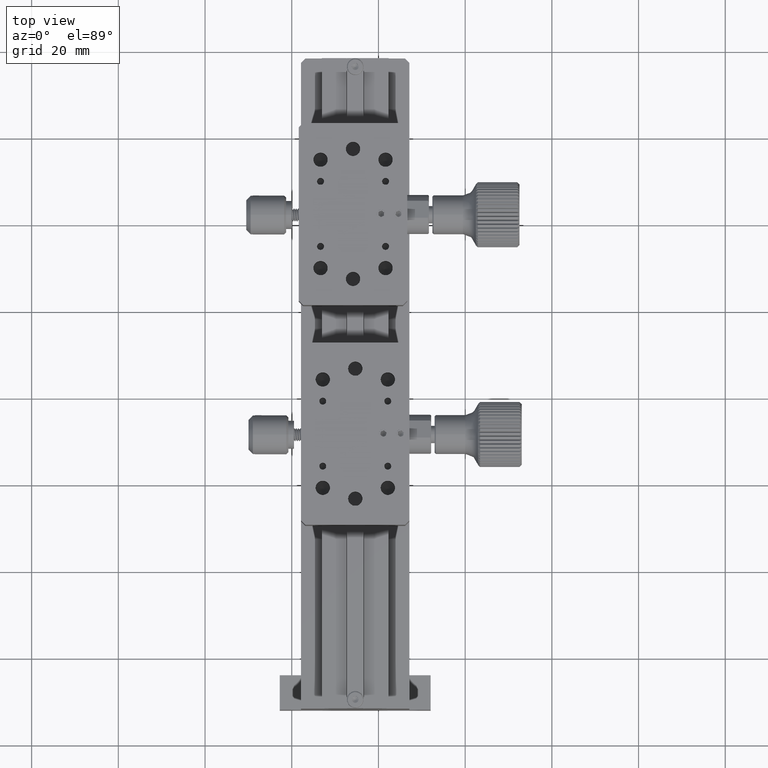
[diagram: clean part render]
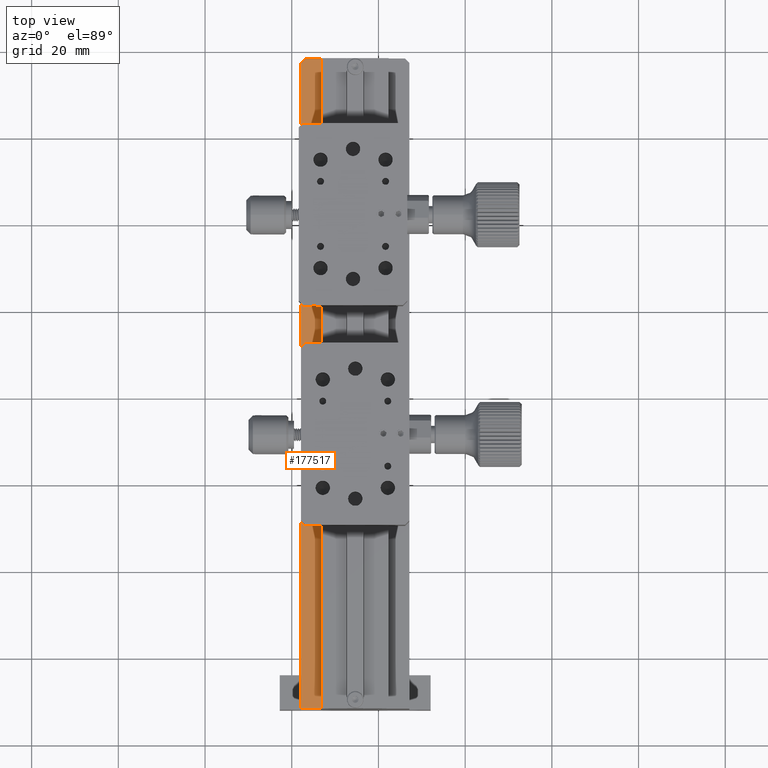
[diagram: same view with one face highlighted and labeled with its STEP entity id]
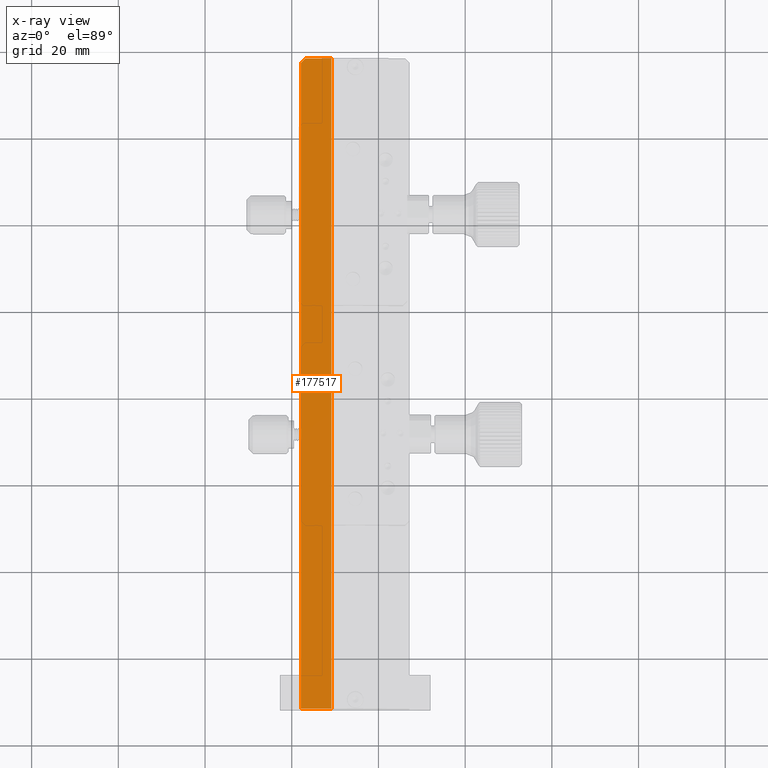
[diagram: x-ray of the same camera — body ghosted, the highlighted face saturated]
A machine part, top view. The second image highlights one B-rep face of the part: STEP entity #177517.
The next image is the same camera in x-ray: the body ghosted, the highlighted face saturated — about 0% of this face is hidden behind the body in this view.
In plain terms, the highlighted planar face has unit normal (0, 0, -1).
Its self-contained STEP definition (entity closure, byte-faithful):
#1971 = EDGE_CURVE ( 'NONE', #142999, #132604, #107773, .T. ) ;
#3579 = EDGE_LOOP ( 'NONE', ( #79116, #174954, #192958, #123830, #113504, #136852, #177139 ) ) ;
#5432 = VERTEX_POINT ( 'NONE', #40624 ) ;
#9301 = VERTEX_POINT ( 'NONE', #214081 ) ;
#11812 =( BOUNDED_CURVE ( )  B_SPLINE_CURVE ( 3, ( #169332, #98085, #165885, #184562 ),
 .UNSPECIFIED., .F., .F. ) 
 B_SPLINE_CURVE_WITH_KNOTS ( ( 4, 4 ),
 ( 3.141592653590070672, 4.712388980384659476 ),
 .UNSPECIFIED. ) 
 CURVE ( )  GEOMETRIC_REPRESENTATION_ITEM ( )  RATIONAL_B_SPLINE_CURVE ( ( 1.000000000000000000, 0.8047378541244374350, 0.8047378541244374350, 1.000000000000000000 ) ) 
 REPRESENTATION_ITEM ( '' )  );
#16333 = CARTESIAN_POINT ( 'NONE',  ( -37.85755063790385577, 78.07759562841538070, 5.545841171384680024 ) ) ;
#20546 = CARTESIAN_POINT ( 'NONE',  ( -36.85755063790384867, 78.07759562841529544, 5.545841171384680024 ) ) ;
#22728 = CARTESIAN_POINT ( 'NONE',  ( -37.85755063790385577, -71.92240437158470456, 5.545841171383111501 ) ) ;
#24317 = EDGE_CURVE ( 'NONE', #34654, #5432, #127814, .T. ) ;
#32755 = CARTESIAN_POINT ( 'NONE',  ( -30.85755063790403341, 77.99475291594069404, 5.545841171384680912 ) ) ;
#34058 = DIRECTION ( 'NONE',  ( 0.000000000000000000, -1.000000000000000000, -0.000000000000000000 ) ) ;
#34654 = VERTEX_POINT ( 'NONE', #207119 ) ;
#36192 = CARTESIAN_POINT ( 'NONE',  ( -30.85755063790397656, 77.87759562841533523, 5.545841171384652490 ) ) ;
#38434 = PLANE ( 'NONE',  #110906 ) ;
#40624 = CARTESIAN_POINT ( 'NONE',  ( -37.85755063790385577, -71.92240437158470456, 5.545841171383902868 ) ) ;
#51317 = VECTOR ( 'NONE', #123781, 1000.000000000000114 ) ;
#51578 = LINE ( 'NONE', #194035, #102021 ) ;
#52562 = CARTESIAN_POINT ( 'NONE',  ( -37.85755063790385577, 77.07759562841538070, 5.545841171384665813 ) ) ;
#53941 = VERTEX_POINT ( 'NONE', #20546 ) ;
#70033 = FACE_OUTER_BOUND ( 'NONE', #3579, .T. ) ;
#72327 = DIRECTION ( 'NONE',  ( 0.000000000000000000, 1.047444401652940164E-14, -1.000000000000000000 ) ) ;
#74735 = CARTESIAN_POINT ( 'NONE',  ( -30.62661053022810975, 78.07759562841526702, 5.545841171384680024 ) ) ;
#78993 = CARTESIAN_POINT ( 'NONE',  ( -30.85755063790397656, 77.87759562841533523, 5.545841171384652490 ) ) ;
#79116 = ORIENTED_EDGE ( 'NONE', *, *, #98469, .F. ) ;
#82574 = EDGE_CURVE ( 'NONE', #117216, #142999, #87038, .T. ) ;
#87038 =( BOUNDED_CURVE ( )  B_SPLINE_CURVE ( 3, ( #120346, #121485, #32755, #36192 ),
 .UNSPECIFIED., .F., .F. ) 
 B_SPLINE_CURVE_WITH_KNOTS ( ( 4, 4 ),
 ( 4.712388980384389470, 6.283185307179586232 ),
 .UNSPECIFIED. ) 
 CURVE ( )  GEOMETRIC_REPRESENTATION_ITEM ( )  RATIONAL_B_SPLINE_CURVE ( ( 1.000000000000000000, 0.8047378541242942163, 0.8047378541242942163, 1.000000000000000000 ) ) 
 REPRESENTATION_ITEM ( '' )  );
#92785 = DIRECTION ( 'NONE',  ( -1.000000000000000000, 0.000000000000000000, -0.000000000000000000 ) ) ;
#98085 = CARTESIAN_POINT ( 'NONE',  ( -30.85755063790384511, -71.83956165911010316, 5.545841171383110613 ) ) ;
#98469 = EDGE_CURVE ( 'NONE', #9301, #53941, #212551, .T. ) ;
#99371 = CARTESIAN_POINT ( 'NONE',  ( -30.85755063790391617, -71.72240437158475856, 5.545841171383111501 ) ) ;
#102021 = VECTOR ( 'NONE', #34058, 1000.000000000000000 ) ;
#107773 = LINE ( 'NONE', #215206, #209496 ) ;
#110906 = AXIS2_PLACEMENT_3D ( 'NONE', #16333, #72327, #214783 ) ;
#113504 = ORIENTED_EDGE ( 'NONE', *, *, #1971, .F. ) ;
#117216 = VERTEX_POINT ( 'NONE', #74735 ) ;
#120346 = CARTESIAN_POINT ( 'NONE',  ( -30.62661053022810975, 78.07759562841526702, 5.545841171384680024 ) ) ;
#121485 = CARTESIAN_POINT ( 'NONE',  ( -30.76189211320875216, 78.07759562841532386, 5.545841171384681800 ) ) ;
#123781 = DIRECTION ( 'NONE',  ( 0.7071067811865474617, 0.7071067811865474617, 9.813077866773586595E-15 ) ) ;
#123830 = ORIENTED_EDGE ( 'NONE', *, *, #160205, .F. ) ;
#127814 = LINE ( 'NONE', #22728, #222740 ) ;
#128680 = LINE ( 'NONE', #150819, #167139 ) ;
#132604 = VERTEX_POINT ( 'NONE', #99371 ) ;
#136852 = ORIENTED_EDGE ( 'NONE', *, *, #82574, .F. ) ;
#142999 = VERTEX_POINT ( 'NONE', #78993 ) ;
#143973 = DIRECTION ( 'NONE',  ( -0.000000000000000000, -1.000000000000000000, -1.047444401652940164E-14 ) ) ;
#150819 = CARTESIAN_POINT ( 'NONE',  ( -25.35755063790384867, 78.07759562841526702, 5.545841171384680024 ) ) ;
#160205 = EDGE_CURVE ( 'NONE', #132604, #34654, #11812, .T. ) ;
#161218 = EDGE_CURVE ( 'NONE', #117216, #53941, #128680, .T. ) ;
#165885 = CARTESIAN_POINT ( 'NONE',  ( -30.76189211320862071, -71.92240437158469035, 5.545841171383108836 ) ) ;
#166030 = EDGE_CURVE ( 'NONE', #9301, #5432, #51578, .T. ) ;
#167139 = VECTOR ( 'NONE', #222054, 1000.000000000000000 ) ;
#169332 = CARTESIAN_POINT ( 'NONE',  ( -30.85755063790391617, -71.72240437158475856, 5.545841171383111501 ) ) ;
#174954 = ORIENTED_EDGE ( 'NONE', *, *, #166030, .T. ) ;
#177139 = ORIENTED_EDGE ( 'NONE', *, *, #161218, .T. ) ;
#177517 = ADVANCED_FACE ( 'NONE', ( #70033 ), #38434, .F. ) ;
#184562 = CARTESIAN_POINT ( 'NONE',  ( -30.62661053022804580, -71.92240437158470456, 5.545841171383111501 ) ) ;
#192958 = ORIENTED_EDGE ( 'NONE', *, *, #24317, .F. ) ;
#194035 = CARTESIAN_POINT ( 'NONE',  ( -37.85755063790385577, 78.07759562841538070, 5.545841171384680024 ) ) ;
#207119 = CARTESIAN_POINT ( 'NONE',  ( -30.62661053022804580, -71.92240437158470456, 5.545841171383111501 ) ) ;
#209496 = VECTOR ( 'NONE', #143973, 1000.000000000000000 ) ;
#212551 = LINE ( 'NONE', #52562, #51317 ) ;
#214081 = CARTESIAN_POINT ( 'NONE',  ( -37.85755063790385577, 77.07759562841538070, 5.545841171384680024 ) ) ;
#214783 = DIRECTION ( 'NONE',  ( 0.000000000000000000, 1.000000000000000000, 1.047444401652940164E-14 ) ) ;
#215206 = CARTESIAN_POINT ( 'NONE',  ( -30.85755063790385222, 78.07759562841538070, 5.545841171384680024 ) ) ;
#222054 = DIRECTION ( 'NONE',  ( -1.000000000000000000, -0.000000000000000000, -0.000000000000000000 ) ) ;
#222740 = VECTOR ( 'NONE', #92785, 1000.000000000000000 ) ;